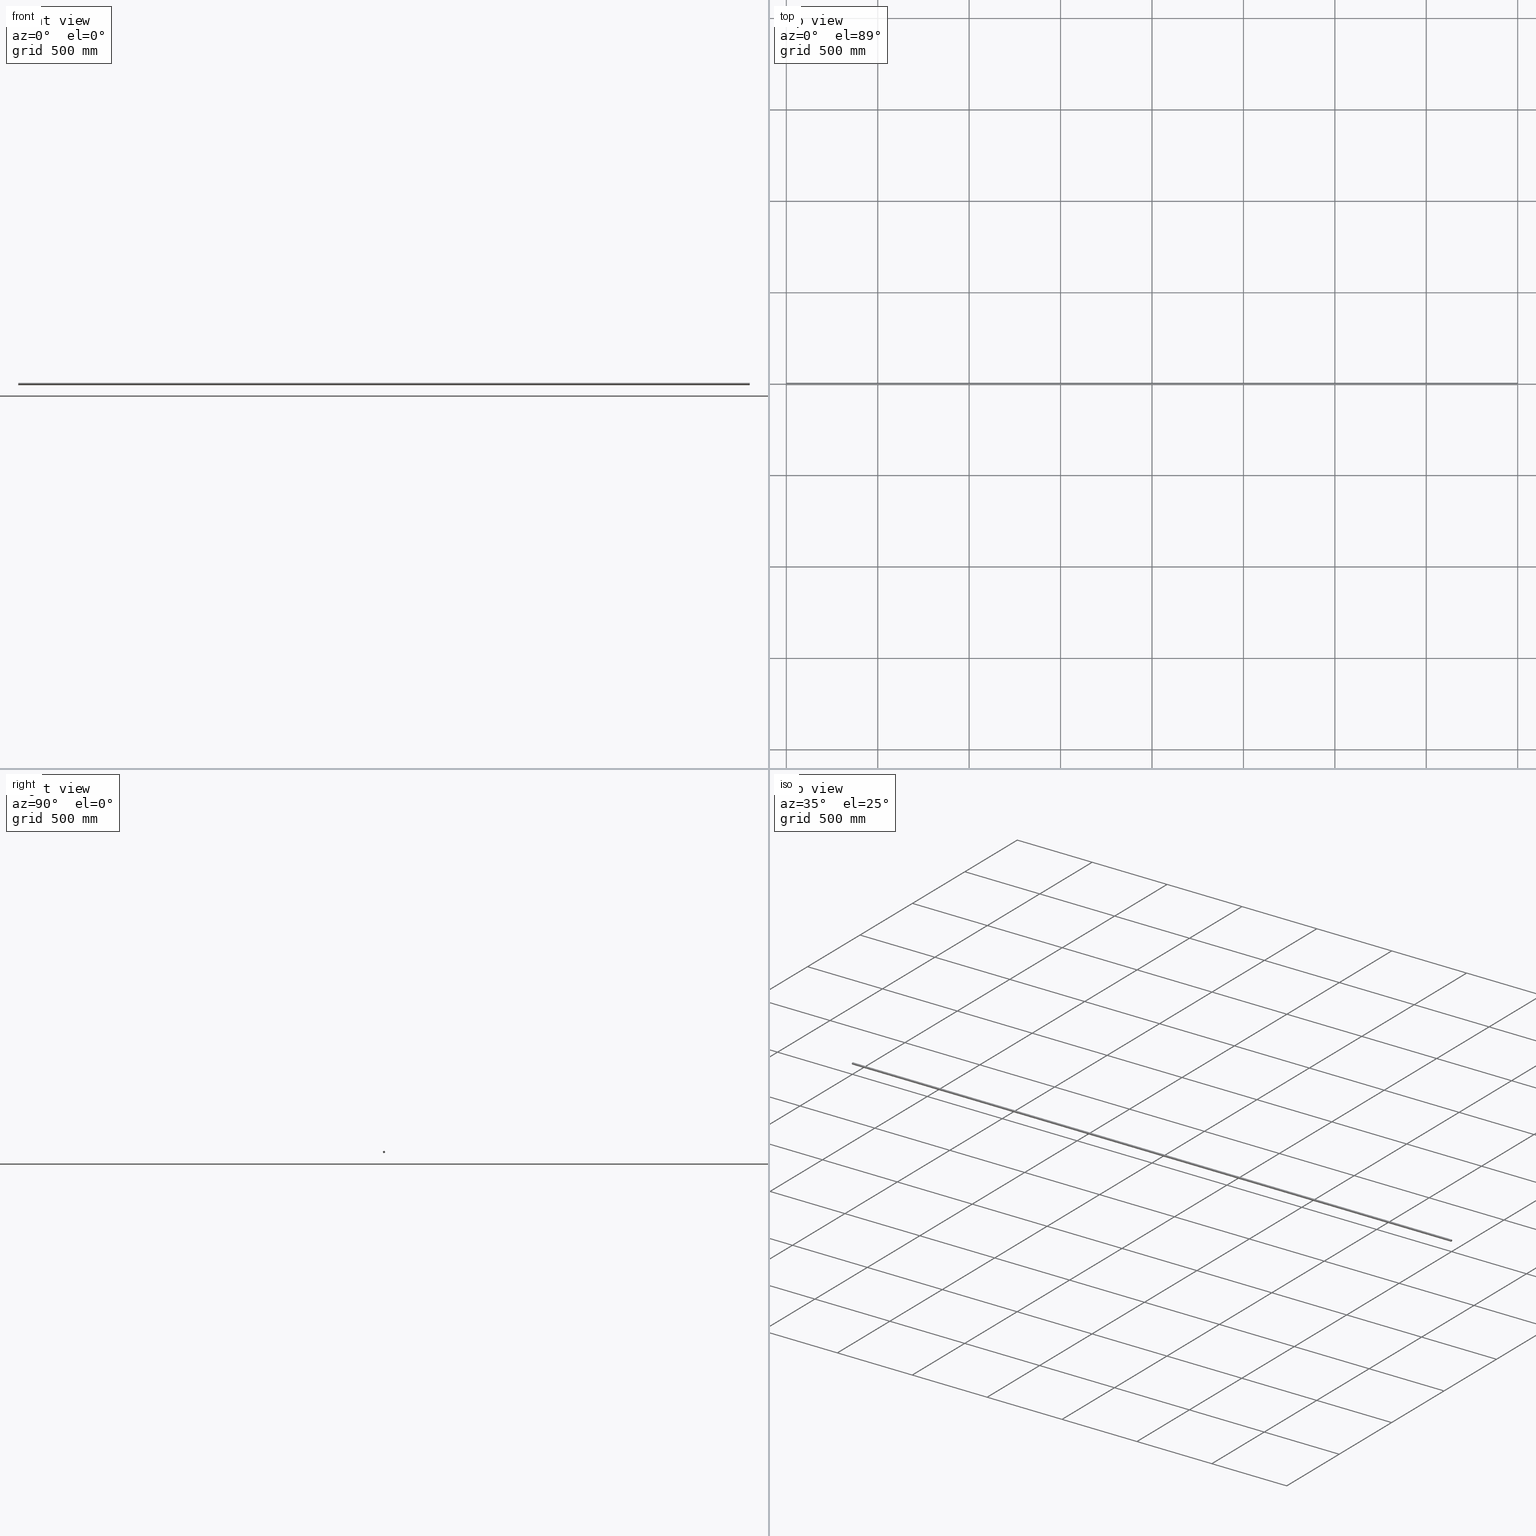
[diagram: canonical four-view strip — front | top / right | iso, engineering-drawing reading convention]
A machine part, canonical four-view strip (front | top / right | iso — engineering-drawing reading convention). The complete STEP part file that produces these views, byte-faithful:
ISO-10303-21;
HEADER;
FILE_DESCRIPTION (( 'STEP AP203' ),
    '1' );
FILE_NAME ('3982-35-10_REV_.step',
    '2026-01-19T06:00:39',
    ( '' ),
    ( '' ),
    'SwSTEP 2.0',
    'SolidWorks 2025',
    '' );
FILE_SCHEMA (( 'CONFIG_CONTROL_DESIGN' ));
ENDSEC;

DATA;
#1 = SHAPE_DEFINITION_REPRESENTATION ( #107, #100 ) ;
#2 = APPROVAL_ROLE ( '' ) ;
#3 = AXIS2_PLACEMENT_3D ( 'NONE', #59, #141, #116 ) ;
#4 = ADVANCED_FACE ( 'NONE', ( #169 ), #170, .F. ) ;
#5 = CIRCLE ( 'NONE', #90, 6.000000000000000888 ) ;
#6 = CARTESIAN_POINT ( 'NONE',  ( 2000.000000000000000, -5.999999999999266365, 0.000000000000000000 ) ) ;
#7 = DIRECTION ( 'NONE',  ( 0.000000000000000000, 1.000000000000000000, 0.000000000000000000 ) ) ;
#8 = CARTESIAN_POINT ( 'NONE',  ( 2000.000000000000000, 7.347880794884118987E-13, 0.000000000000000000 ) ) ;
#9 = PERSON_AND_ORGANIZATION_ROLE ( 'creator' ) ;
#10 = CALENDAR_DATE ( 2026, 19, 1 ) ;
#11 = AXIS2_PLACEMENT_3D ( 'NONE', #115, #31, #129 ) ;
#12 = CC_DESIGN_PERSON_AND_ORGANIZATION_ASSIGNMENT ( #173, #48, ( #29 ) ) ;
#13 = APPLICATION_PROTOCOL_DEFINITION ( 'international standard', 'config_control_design', 1994, #135 ) ;
#14 = APPROVAL_STATUS ( 'not_yet_approved' ) ;
#15 = PRODUCT ( '3982-35-10_REV_', '3982-35-10_REV_', '', ( #120 ) ) ;
#16 = CARTESIAN_POINT ( 'NONE',  ( 2000.000000000000000, 7.347880794884118987E-13, 0.000000000000000000 ) ) ;
#17 = CC_DESIGN_APPROVAL ( #56, ( #81 ) ) ;
#18 = DIRECTION ( 'NONE',  ( 1.000000000000000000, 1.836970198721029688E-16, 0.000000000000000000 ) ) ;
#19 = VERTEX_POINT ( 'NONE', #88 ) ;
#20 = EDGE_LOOP ( 'NONE', ( #55, #138, #156, #99 ) ) ;
#21 = CARTESIAN_POINT ( 'NONE',  ( -2000.000000000000000, 0.000000000000000000, 0.000000000000000000 ) ) ;
#22 = PERSON_AND_ORGANIZATION ( #166, #105 ) ;
#23 = PERSON_AND_ORGANIZATION ( #166, #105 ) ;
#24 = CC_DESIGN_DATE_AND_TIME_ASSIGNMENT ( #51, #152, ( #65 ) ) ;
#25 = PERSON_AND_ORGANIZATION ( #166, #105 ) ;
#26 = AXIS2_PLACEMENT_3D ( 'NONE', #8, #171, #7 ) ;
#27 = EDGE_CURVE ( 'NONE', #127, #113, #104, .T. ) ;
#28 = PERSON_AND_ORGANIZATION ( #166, #105 ) ;
#29 = PRODUCT_DEFINITION_FORMATION_WITH_SPECIFIED_SOURCE ( 'ANY', '', #15, .NOT_KNOWN. ) ;
#30 = DIRECTION ( 'NONE',  ( -1.000000000000000000, -1.836970198721029688E-16, -0.000000000000000000 ) ) ;
#31 = DIRECTION ( 'NONE',  ( 1.000000000000000000, 1.836970198721029688E-16, 0.000000000000000000 ) ) ;
#32 = ORIENTED_EDGE ( 'NONE', *, *, #161, .T. ) ;
#33 = DIRECTION ( 'NONE',  ( 1.000000000000000000, 1.836970198721029688E-16, 0.000000000000000000 ) ) ;
#34 = CYLINDRICAL_SURFACE ( 'NONE', #124, 6.000000000000000888 ) ;
#35 = APPROVAL_PERSON_ORGANIZATION ( #23, #136, #117 ) ;
#36 = PERSON_AND_ORGANIZATION_ROLE ( 'creator' ) ;
#37 = PERSON_AND_ORGANIZATION_ROLE ( 'design_owner' ) ;
#38 = DATE_AND_TIME ( #39, #162 ) ;
#39 = CALENDAR_DATE ( 2026, 19, 1 ) ;
#40 = CIRCLE ( 'NONE', #26, 6.000000000000000888 ) ;
#41 = COORDINATED_UNIVERSAL_TIME_OFFSET ( 10, 0, .AHEAD. ) ;
#42 = EDGE_CURVE ( 'NONE', #127, #19, #67, .T. ) ;
#43 = DESIGN_CONTEXT ( 'detailed design', #135, 'design' ) ;
#44 =( NAMED_UNIT ( * ) PLANE_ANGLE_UNIT ( ) SI_UNIT ( $, .RADIAN. ) );
#45 = DIRECTION ( 'NONE',  ( -1.000000000000000000, -1.836970198721029688E-16, -0.000000000000000000 ) ) ;
#46 = CARTESIAN_POINT ( 'NONE',  ( -2000.000000000000000, -6.000000000000000000, 0.000000000000000000 ) ) ;
#47 = FACE_OUTER_BOUND ( 'NONE', #87, .T. ) ;
#48 = PERSON_AND_ORGANIZATION_ROLE ( 'design_supplier' ) ;
#49 = COORDINATED_UNIVERSAL_TIME_OFFSET ( 10, 0, .AHEAD. ) ;
#50 = CC_DESIGN_PERSON_AND_ORGANIZATION_ASSIGNMENT ( #77, #37, ( #15 ) ) ;
#51 = DATE_AND_TIME ( #164, #122 ) ;
#52 = APPROVAL ( #149, 'UNSPECIFIED' ) ;
#53 = VECTOR ( 'NONE', #30, 1000.000000000000000 ) ;
#54 = DIRECTION ( 'NONE',  ( 0.000000000000000000, 1.000000000000000000, 0.000000000000000000 ) ) ;
#55 = ORIENTED_EDGE ( 'NONE', *, *, #126, .F. ) ;
#56 = APPROVAL ( #106, 'UNSPECIFIED' ) ;
#57 = EDGE_LOOP ( 'NONE', ( #101, #82 ) ) ;
#58 = CC_DESIGN_APPROVAL ( #52, ( #65 ) ) ;
#59 = CARTESIAN_POINT ( 'NONE',  ( 2000.000000000000000, 7.347880794884118987E-13, 0.000000000000000000 ) ) ;
#60 = APPLICATION_PROTOCOL_DEFINITION ( 'international standard', 'config_control_design', 1994, #80 ) ;
#61 = PRODUCT_RELATED_PRODUCT_CATEGORY ( 'detail', '', ( #15 ) ) ;
#62 = APPROVAL_DATE_TIME ( #132, #56 ) ;
#63 = DATE_AND_TIME ( #10, #139 ) ;
#64 = DIRECTION ( 'NONE',  ( 0.000000000000000000, 0.000000000000000000, 1.000000000000000000 ) ) ;
#65 = PRODUCT_DEFINITION ( 'UNKNOWN', '', #29, #43 ) ;
#66 = EDGE_LOOP ( 'NONE', ( #125, #89 ) ) ;
#67 = CIRCLE ( 'NONE', #86, 6.000000000000000888 ) ;
#68 = CARTESIAN_POINT ( 'NONE',  ( 2000.000000000000000, 6.000000000000735412, 7.347880794884120722E-16 ) ) ;
#69 = CYLINDRICAL_SURFACE ( 'NONE', #110, 6.000000000000000888 ) ;
#70 = ORIENTED_EDGE ( 'NONE', *, *, #97, .F. ) ;
#71 = CIRCLE ( 'NONE', #11, 6.000000000000000888 ) ;
#72 = CC_DESIGN_PERSON_AND_ORGANIZATION_ASSIGNMENT ( #28, #36, ( #29 ) ) ;
#73 = DIRECTION ( 'NONE',  ( -1.000000000000000000, -1.836970198721029688E-16, -0.000000000000000000 ) ) ;
#74 = COORDINATED_UNIVERSAL_TIME_OFFSET ( 10, 0, .AHEAD. ) ;
#75 = PERSON_AND_ORGANIZATION ( #166, #105 ) ;
#76 = MANIFOLD_SOLID_BREP ( 'Rod 12 ROD(1)', #95 ) ;
#77 = PERSON_AND_ORGANIZATION ( #166, #105 ) ;
#78 = CC_DESIGN_PERSON_AND_ORGANIZATION_ASSIGNMENT ( #22, #9, ( #65 ) ) ;
#79 = CALENDAR_DATE ( 2026, 19, 1 ) ;
#80 = APPLICATION_CONTEXT ( 'configuration controlled 3d designs of mechanical parts and assemblies' ) ;
#81 = SECURITY_CLASSIFICATION ( '', '', #121 ) ;
#82 = ORIENTED_EDGE ( 'NONE', *, *, #126, .T. ) ;
#83 = LINE ( 'NONE', #68, #168 ) ;
#84 = EDGE_CURVE ( 'NONE', #143, #113, #71, .T. ) ;
#85 = CARTESIAN_POINT ( 'NONE',  ( 2000.000000000000000, 7.347880794884118987E-13, 0.000000000000000000 ) ) ;
#86 = AXIS2_PLACEMENT_3D ( 'NONE', #85, #18, #103 ) ;
#87 = EDGE_LOOP ( 'NONE', ( #70, #167, #98, #32 ) ) ;
#88 = CARTESIAN_POINT ( 'NONE',  ( 2000.000000000000000, 6.000000000000735412, 7.347880794884571359E-16 ) ) ;
#89 = ORIENTED_EDGE ( 'NONE', *, *, #84, .F. ) ;
#90 = AXIS2_PLACEMENT_3D ( 'NONE', #159, #33, #54 ) ;
#91 = PERSON_AND_ORGANIZATION ( #166, #105 ) ;
#92 =( NAMED_UNIT ( * ) SI_UNIT ( $, .STERADIAN. ) SOLID_ANGLE_UNIT ( ) );
#93 = PERSON_AND_ORGANIZATION_ROLE ( 'classification_officer' ) ;
#94 = CC_DESIGN_DATE_AND_TIME_ASSIGNMENT ( #38, #147, ( #81 ) ) ;
#95 = CLOSED_SHELL ( 'NONE', ( #155, #150, #118, #4 ) ) ;
#96 = APPROVAL_PERSON_ORGANIZATION ( #25, #56, #2 ) ;
#97 = EDGE_CURVE ( 'NONE', #19, #143, #83, .T. ) ;
#98 = ORIENTED_EDGE ( 'NONE', *, *, #27, .T. ) ;
#99 = ORIENTED_EDGE ( 'NONE', *, *, #27, .F. ) ;
#100 = ADVANCED_BREP_SHAPE_REPRESENTATION ( '3982-35-10_REV_', ( #76, #111 ), #140 ) ;
#101 = ORIENTED_EDGE ( 'NONE', *, *, #42, .T. ) ;
#102 =( LENGTH_UNIT ( ) NAMED_UNIT ( * ) SI_UNIT ( .MILLI., .METRE. ) );
#103 = DIRECTION ( 'NONE',  ( 0.000000000000000000, 1.000000000000000000, 0.000000000000000000 ) ) ;
#104 = LINE ( 'NONE', #157, #53 ) ;
#105 = ORGANIZATION ( 'UNSPECIFIED', 'UNSPECIFIED', '' ) ;
#106 = APPROVAL_STATUS ( 'not_yet_approved' ) ;
#107 = PRODUCT_DEFINITION_SHAPE ( 'NONE', 'NONE',  #65 ) ;
#108 = LOCAL_TIME ( 17, 0, 39.00000000000000000, #74 ) ;
#109 = DIRECTION ( 'NONE',  ( 1.000000000000000000, 0.000000000000000000, 0.000000000000000000 ) ) ;
#110 = AXIS2_PLACEMENT_3D ( 'NONE', #146, #114, #160 ) ;
#111 = AXIS2_PLACEMENT_3D ( 'NONE', #163, #64, #109 ) ;
#112 = FACE_OUTER_BOUND ( 'NONE', #20, .T. ) ;
#113 = VERTEX_POINT ( 'NONE', #46 ) ;
#114 = DIRECTION ( 'NONE',  ( -1.000000000000000000, -1.836970198721029688E-16, -0.000000000000000000 ) ) ;
#115 = CARTESIAN_POINT ( 'NONE',  ( -2000.000000000000000, 0.000000000000000000, 0.000000000000000000 ) ) ;
#116 = DIRECTION ( 'NONE',  ( -1.836970198721029688E-16, 1.000000000000000000, 0.000000000000000000 ) ) ;
#117 = APPROVAL_ROLE ( '' ) ;
#118 = ADVANCED_FACE ( 'NONE', ( #128 ), #145, .T. ) ;
#119 = CC_DESIGN_SECURITY_CLASSIFICATION ( #81, ( #29 ) ) ;
#120 = MECHANICAL_CONTEXT ( 'NONE', #80, 'mechanical' ) ;
#121 = SECURITY_CLASSIFICATION_LEVEL ( 'unclassified' ) ;
#122 = LOCAL_TIME ( 17, 0, 39.00000000000000000, #134 ) ;
#123 = CC_DESIGN_PERSON_AND_ORGANIZATION_ASSIGNMENT ( #91, #93, ( #81 ) ) ;
#124 = AXIS2_PLACEMENT_3D ( 'NONE', #16, #73, #131 ) ;
#125 = ORIENTED_EDGE ( 'NONE', *, *, #161, .F. ) ;
#126 = EDGE_CURVE ( 'NONE', #19, #127, #40, .T. ) ;
#127 = VERTEX_POINT ( 'NONE', #6 ) ;
#128 = FACE_OUTER_BOUND ( 'NONE', #57, .T. ) ;
#129 = DIRECTION ( 'NONE',  ( 0.000000000000000000, 1.000000000000000000, 0.000000000000000000 ) ) ;
#130 = DIRECTION ( 'NONE',  ( -1.836970198721029688E-16, 1.000000000000000000, 0.000000000000000000 ) ) ;
#131 = DIRECTION ( 'NONE',  ( 0.000000000000000000, -1.000000000000000000, 0.000000000000000000 ) ) ;
#132 = DATE_AND_TIME ( #175, #108 ) ;
#133 = APPROVAL_DATE_TIME ( #137, #52 ) ;
#134 = COORDINATED_UNIVERSAL_TIME_OFFSET ( 10, 0, .AHEAD. ) ;
#135 = APPLICATION_CONTEXT ( 'configuration controlled 3d designs of mechanical parts and assemblies' ) ;
#136 = APPROVAL ( #14, 'UNSPECIFIED' ) ;
#137 = DATE_AND_TIME ( #79, #154 ) ;
#138 = ORIENTED_EDGE ( 'NONE', *, *, #97, .T. ) ;
#139 = LOCAL_TIME ( 17, 0, 39.00000000000000000, #41 ) ;
#140 =( GEOMETRIC_REPRESENTATION_CONTEXT ( 3 ) GLOBAL_UNCERTAINTY_ASSIGNED_CONTEXT ( ( #158 ) ) GLOBAL_UNIT_ASSIGNED_CONTEXT ( ( #102, #44, #92 ) ) REPRESENTATION_CONTEXT ( 'NONE', 'WORKASPACE' ) );
#141 = DIRECTION ( 'NONE',  ( 1.000000000000000000, 1.836970198721029688E-16, 0.000000000000000000 ) ) ;
#142 = AXIS2_PLACEMENT_3D ( 'NONE', #21, #144, #130 ) ;
#143 = VERTEX_POINT ( 'NONE', #172 ) ;
#144 = DIRECTION ( 'NONE',  ( 1.000000000000000000, 1.836970198721029688E-16, 0.000000000000000000 ) ) ;
#145 = PLANE ( 'NONE',  #3 ) ;
#146 = CARTESIAN_POINT ( 'NONE',  ( 2000.000000000000000, 7.347880794884118987E-13, 0.000000000000000000 ) ) ;
#147 = DATE_TIME_ROLE ( 'classification_date' ) ;
#148 = APPROVAL_ROLE ( '' ) ;
#149 = APPROVAL_STATUS ( 'not_yet_approved' ) ;
#150 = ADVANCED_FACE ( 'NONE', ( #47 ), #69, .T. ) ;
#151 = APPROVAL_PERSON_ORGANIZATION ( #75, #52, #148 ) ;
#152 = DATE_TIME_ROLE ( 'creation_date' ) ;
#153 = APPROVAL_DATE_TIME ( #63, #136 ) ;
#154 = LOCAL_TIME ( 17, 0, 39.00000000000000000, #174 ) ;
#155 = ADVANCED_FACE ( 'NONE', ( #112 ), #34, .T. ) ;
#156 = ORIENTED_EDGE ( 'NONE', *, *, #84, .T. ) ;
#157 = CARTESIAN_POINT ( 'NONE',  ( 2000.000000000000000, -5.999999999999266365, 0.000000000000000000 ) ) ;
#158 = UNCERTAINTY_MEASURE_WITH_UNIT (LENGTH_MEASURE( 1.000000000000000082E-05 ), #102, 'distance_accuracy_value', 'NONE');
#159 = CARTESIAN_POINT ( 'NONE',  ( -2000.000000000000000, 0.000000000000000000, 0.000000000000000000 ) ) ;
#160 = DIRECTION ( 'NONE',  ( 0.000000000000000000, -1.000000000000000000, 0.000000000000000000 ) ) ;
#161 = EDGE_CURVE ( 'NONE', #113, #143, #5, .T. ) ;
#162 = LOCAL_TIME ( 17, 0, 39.00000000000000000, #49 ) ;
#163 = CARTESIAN_POINT ( 'NONE',  ( 0.000000000000000000, 0.000000000000000000, 0.000000000000000000 ) ) ;
#164 = CALENDAR_DATE ( 2026, 19, 1 ) ;
#165 = CC_DESIGN_APPROVAL ( #136, ( #29 ) ) ;
#166 = PERSON ( 'UNSPECIFIED', 'UNSPECIFIED', 'UNSPECIFIED', ('UNSPECIFIED'), ('UNSPECIFIED'), ('UNSPECIFIED') ) ;
#167 = ORIENTED_EDGE ( 'NONE', *, *, #42, .F. ) ;
#168 = VECTOR ( 'NONE', #45, 1000.000000000000000 ) ;
#169 = FACE_OUTER_BOUND ( 'NONE', #66, .T. ) ;
#170 = PLANE ( 'NONE',  #142 ) ;
#171 = DIRECTION ( 'NONE',  ( 1.000000000000000000, 1.836970198721029688E-16, 0.000000000000000000 ) ) ;
#172 = CARTESIAN_POINT ( 'NONE',  ( -2000.000000000000000, 6.000000000000000888, 7.347880794884120722E-16 ) ) ;
#173 = PERSON_AND_ORGANIZATION ( #166, #105 ) ;
#174 = COORDINATED_UNIVERSAL_TIME_OFFSET ( 10, 0, .AHEAD. ) ;
#175 = CALENDAR_DATE ( 2026, 19, 1 ) ;
ENDSEC;
END-ISO-10303-21;
